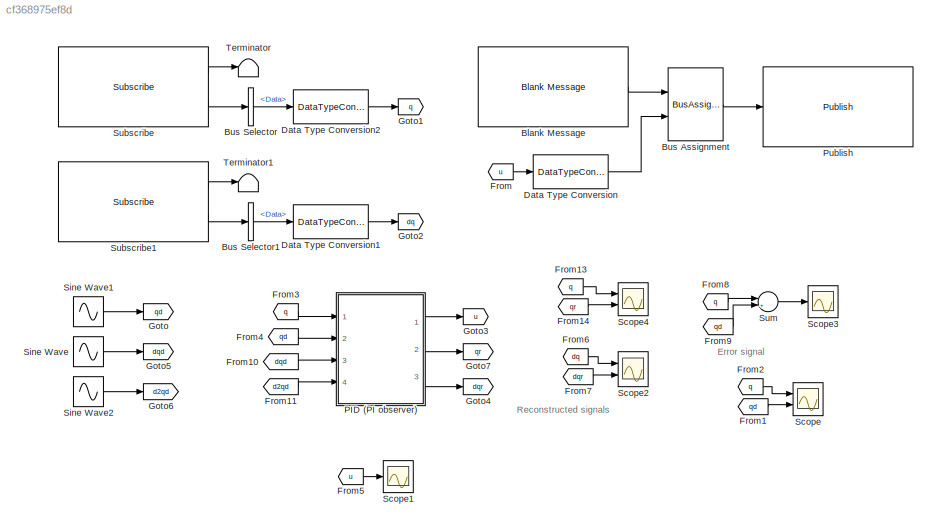
MODEL slx_cf368975ef8d
KIND model
CONFIG AbsTol = auto
CONFIG EnableMultiTasking = off
CONFIG FixedStep = 1e-3
CONFIG MaxStep = auto
CONFIG MinStep = auto
CONFIG RelTol = 1e-3
CONFIG SampleTimeConstraint = Unconstrained
CONFIG SolverName = ode4
CONFIG StartTime = 0.0
CONFIG StopTime = 10
BLOCK [Reference] Blank Message  REF=robotlib/Blank Message
  Ports = [0, 1]
  SourceBlock = robotlib/Blank Message
  SourceProductBaseCode = RR
  SourceType = ROS Blank Message
BLOCK [BusAssignment] Bus Assignment
  AssignedSignals = Data
  Ports = [2, 1]
BLOCK [BusSelector] Bus Selector
  OutputSignals = Data
  Ports = [1, 1]
BLOCK [BusSelector] Bus Selector1
  OutputSignals = Data
  Ports = [1, 1]
BLOCK [DataTypeConversion] Data Type Conversion
  RndMeth = Floor
  SaturateOnIntegerOverflow = off
BLOCK [DataTypeConversion] Data Type Conversion1
  RndMeth = Floor
  SaturateOnIntegerOverflow = off
BLOCK [DataTypeConversion] Data Type Conversion2
  RndMeth = Floor
  SaturateOnIntegerOverflow = off
BLOCK [From] From
  GotoTag = u
BLOCK [From] From1
  GotoTag = qd
BLOCK [From] From10
  GotoTag = dqd
BLOCK [From] From11
  GotoTag = d2qd
BLOCK [From] From13
  GotoTag = q
BLOCK [From] From14
  GotoTag = qr
BLOCK [From] From2
  GotoTag = q
BLOCK [From] From3
  GotoTag = q
BLOCK [From] From4
  GotoTag = qd
BLOCK [From] From5
  GotoTag = u
BLOCK [From] From6
  GotoTag = dq
BLOCK [From] From7
  GotoTag = dqr
BLOCK [From] From8
  GotoTag = q
BLOCK [From] From9
  GotoTag = qd
BLOCK [Goto] Goto
  GotoTag = qd
BLOCK [Goto] Goto1
  GotoTag = q
BLOCK [Goto] Goto2
  GotoTag = dq
BLOCK [Goto] Goto3
  GotoTag = u
BLOCK [Goto] Goto4
  GotoTag = dqr
BLOCK [Goto] Goto5
  GotoTag = dqd
BLOCK [Goto] Goto6
  GotoTag = d2qd
BLOCK [Goto] Goto7
  GotoTag = qr
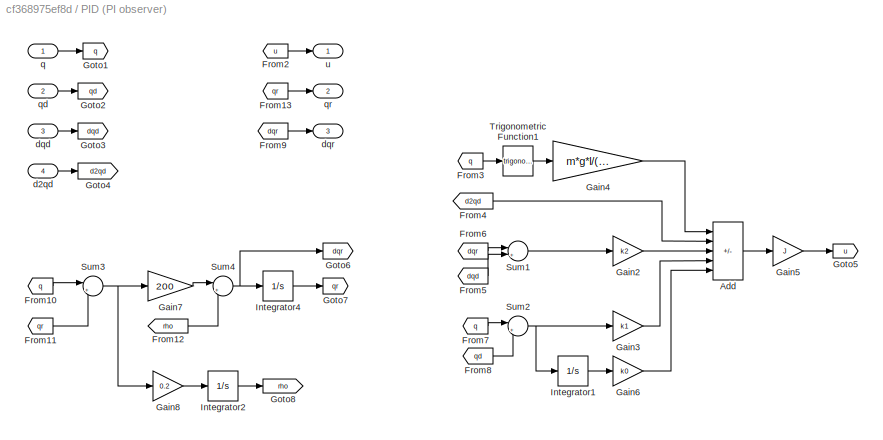
BLOCK [SubSystem] PID (PI observer)
  Ports = [4, 3]
  RequestExecContextInheritance = off
BLOCK [Sum] PID (PI observer)/Add
  IconShape = rectangular
  Inputs = -+---
  Ports = [5, 1]
BLOCK [From] PID (PI observer)/From10
  GotoTag = q
BLOCK [From] PID (PI observer)/From11
  GotoTag = qr
BLOCK [From] PID (PI observer)/From12
  GotoTag = rho
BLOCK [From] PID (PI observer)/From13
  GotoTag = qr
BLOCK [From] PID (PI observer)/From2
  GotoTag = u
BLOCK [From] PID (PI observer)/From3
  GotoTag = q
BLOCK [From] PID (PI observer)/From4
  GotoTag = d2qd
BLOCK [From] PID (PI observer)/From5
  GotoTag = dqd
BLOCK [From] PID (PI observer)/From6
  GotoTag = dqr
BLOCK [From] PID (PI observer)/From7
  GotoTag = q
BLOCK [From] PID (PI observer)/From8
  GotoTag = qd
BLOCK [From] PID (PI observer)/From9
  GotoTag = dqr
BLOCK [Gain] PID (PI observer)/Gain2
  Gain = k2
BLOCK [Gain] PID (PI observer)/Gain3
  Gain = k1
BLOCK [Gain] PID (PI observer)/Gain4
  Gain = m*g*l/(2*J)
BLOCK [Gain] PID (PI observer)/Gain5
  Gain = J
BLOCK [Gain] PID (PI observer)/Gain6
  Gain = k0
BLOCK [Gain] PID (PI observer)/Gain7
  Gain = 200
BLOCK [Gain] PID (PI observer)/Gain8
  Gain = 0.2
BLOCK [Goto] PID (PI observer)/Goto1
  GotoTag = q
BLOCK [Goto] PID (PI observer)/Goto2
  GotoTag = qd
BLOCK [Goto] PID (PI observer)/Goto3
  GotoTag = dqd
BLOCK [Goto] PID (PI observer)/Goto4
  GotoTag = d2qd
BLOCK [Goto] PID (PI observer)/Goto5
  GotoTag = u
BLOCK [Goto] PID (PI observer)/Goto6
  GotoTag = dqr
BLOCK [Goto] PID (PI observer)/Goto7
  GotoTag = qr
BLOCK [Goto] PID (PI observer)/Goto8
  GotoTag = rho
BLOCK [Integrator] PID (PI observer)/Integrator1
  Ports = [1, 1]
BLOCK [Integrator] PID (PI observer)/Integrator2
  Ports = [1, 1]
BLOCK [Integrator] PID (PI observer)/Integrator4
  Ports = [1, 1]
BLOCK [Sum] PID (PI observer)/Sum1
  Inputs = |+-
  Ports = [2, 1]
BLOCK [Sum] PID (PI observer)/Sum2
  Inputs = |+-
  Ports = [2, 1]
BLOCK [Sum] PID (PI observer)/Sum3
  Inputs = |+-
  Ports = [2, 1]
BLOCK [Sum] PID (PI observer)/Sum4
  Inputs = |++
  Ports = [2, 1]
BLOCK [Trigonometry] PID (PI observer)/Trigonometric Function1
  Ports = [1, 1]
BLOCK [Inport] PID (PI observer)/d2qd
  Port = 4
BLOCK [Inport] PID (PI observer)/dqd
  Port = 3
BLOCK [Outport] PID (PI observer)/dqr
  Port = 3
BLOCK [Inport] PID (PI observer)/q
BLOCK [Inport] PID (PI observer)/qd
  Port = 2
BLOCK [Outport] PID (PI observer)/qr
  Port = 2
BLOCK [Outport] PID (PI observer)/u
BLOCK [Reference] Publish  REF=robotlib/Publish
  Ports = [1]
  SourceBlock = robotlib/Publish
  SourceProductBaseCode = RR
  SourceType = ROS Publish
BLOCK [Scope] Scope
  Floating = off
  NumInputPorts = 2
  Ports = [2]
  ScopeSpecificationString = Simulink.scopes.TimeScopeBlockCfg('CurrentConfiguration', extmgr.ConfigurationSet(extmgr.Configuration('Core','General UI',true),extmgr.Configuration('Core','Source UI',true),extmgr.Configuration('Sources','WiredSimulink',true,'DataLoggingVariableName','ScopeData1'),extmgr.Configuration('Visuals','Time Domain',true,'SerializedDisplays',{struct('MinYLimReal','-1.88369','MaxYLimReal','1.95318','YLab...<+1464ch>
BLOCK [Scope] Scope1
  Floating = off
  NumInputPorts = 1
  Ports = [1]
  ScopeSpecificationString = Simulink.scopes.TimeScopeBlockCfg('CurrentConfiguration', extmgr.ConfigurationSet(extmgr.Configuration('Core','General UI',true),extmgr.Configuration('Core','Source UI',true),extmgr.Configuration('Sources','WiredSimulink',true,'DataLoggingVariableName','ScopeData2'),extmgr.Configuration('Visuals','Time Domain',true,'SerializedDisplays',{struct('MinYLimReal','-26.95054','MaxYLimReal','68.10732','YL...<+1431ch>
BLOCK [Scope] Scope2
  Floating = off
  NumInputPorts = 2
  Ports = [2]
  ScopeSpecificationString = Simulink.scopes.TimeScopeBlockCfg('CurrentConfiguration', extmgr.ConfigurationSet(extmgr.Configuration('Core','General UI',true),extmgr.Configuration('Core','Source UI',true),extmgr.Configuration('Sources','WiredSimulink',true,'DataLoggingVariableName','ScopeData3'),extmgr.Configuration('Visuals','Time Domain',true,'SerializedDisplays',{struct('MinYLimReal','-9.7239','MaxYLimReal','63.40269','YLab...<+1476ch>
BLOCK [Scope] Scope3
  Floating = off
  NumInputPorts = 1
  Ports = [1]
  ScopeSpecificationString = Simulink.scopes.TimeScopeBlockCfg('CurrentConfiguration', extmgr.ConfigurationSet(extmgr.Configuration('Core','General UI',true),extmgr.Configuration('Core','Source UI',true),extmgr.Configuration('Sources','WiredSimulink',true),extmgr.Configuration('Visuals','Time Domain',true,'SerializedDisplays',{struct('MinYLimReal','-0.05328','MaxYLimReal','0.05406','YLabelReal','','MinYLimMag','0.00000','MaxY...<+1370ch>
BLOCK [Scope] Scope4
  Floating = off
  NumInputPorts = 2
  Ports = [2]
  ScopeSpecificationString = Simulink.scopes.TimeScopeBlockCfg('CurrentConfiguration', extmgr.ConfigurationSet(extmgr.Configuration('Core','General UI',true),extmgr.Configuration('Core','Source UI',true),extmgr.Configuration('Sources','WiredSimulink',true,'DataLoggingVariableName','ScopeData1'),extmgr.Configuration('Visuals','Time Domain',true,'SerializedDisplays',{struct('MinYLimReal','-1.76124','MaxYLimReal','1.85687','YLab...<+1475ch>
BLOCK [Sin] Sine Wave
  Amplitude = 1.5
  Phase = pi/2
  Ports = [0, 1]
  SampleTime = 0
BLOCK [Sin] Sine Wave1
  Amplitude = 1.5
  Ports = [0, 1]
  SampleTime = 0
BLOCK [Sin] Sine Wave2
  Amplitude = 1.5
  Phase = -pi
  Ports = [0, 1]
  SampleTime = 0
BLOCK [Reference] Subscribe  REF=robotlib/Subscribe
  Ports = [0, 2]
  SourceBlock = robotlib/Subscribe
  SourceProductBaseCode = RR
  SourceType = ROS Subscribe
BLOCK [Reference] Subscribe1  REF=robotlib/Subscribe
  Ports = [0, 2]
  SourceBlock = robotlib/Subscribe
  SourceProductBaseCode = RR
  SourceType = ROS Subscribe
BLOCK [Sum] Sum
  Inputs = |+-
  Ports = [2, 1]
BLOCK [Terminator] Terminator
BLOCK [Terminator] Terminator1
ANNOTATION (root): Error signal
ANNOTATION (root): Reconstructed signals
LINE Blank Message:1 -> Bus Assignment:1
LINE Bus Assignment:1 -> Publish:1
LINE Bus Selector1:1 -> Data Type Conversion1:1
LINE Bus Selector:1 -> Data Type Conversion2:1
LINE Data Type Conversion1:1 -> Goto2:1
LINE Data Type Conversion2:1 -> Goto1:1
LINE Data Type Conversion:1 -> Bus Assignment:2
LINE From10:1 -> PID (PI observer):3
LINE From11:1 -> PID (PI observer):4
LINE From13:1 -> Scope4:1
LINE From14:1 -> Scope4:2
LINE From1:1 -> Scope:2
LINE From2:1 -> Scope:1
LINE From3:1 -> PID (PI observer):1
LINE From4:1 -> PID (PI observer):2
LINE From5:1 -> Scope1:1
LINE From6:1 -> Scope2:1
LINE From7:1 -> Scope2:2
LINE From8:1 -> Sum:1
LINE From9:1 -> Sum:2
LINE From:1 -> Data Type Conversion:1
LINE PID (PI observer)/Add:1 -> PID (PI observer)/Gain5:1
LINE PID (PI observer)/From10:1 -> PID (PI observer)/Sum3:1
LINE PID (PI observer)/From11:1 -> PID (PI observer)/Sum3:2
LINE PID (PI observer)/From12:1 -> PID (PI observer)/Sum4:2
LINE PID (PI observer)/From13:1 -> PID (PI observer)/qr:1
LINE PID (PI observer)/From2:1 -> PID (PI observer)/u:1
LINE PID (PI observer)/From3:1 -> PID (PI observer)/Trigonometric Function1:1
LINE PID (PI observer)/From4:1 -> PID (PI observer)/Add:2
LINE PID (PI observer)/From5:1 -> PID (PI observer)/Sum1:2
LINE PID (PI observer)/From6:1 -> PID (PI observer)/Sum1:1
LINE PID (PI observer)/From7:1 -> PID (PI observer)/Sum2:1
LINE PID (PI observer)/From8:1 -> PID (PI observer)/Sum2:2
LINE PID (PI observer)/From9:1 -> PID (PI observer)/dqr:1
LINE PID (PI observer)/Gain2:1 -> PID (PI observer)/Add:3
LINE PID (PI observer)/Gain3:1 -> PID (PI observer)/Add:4
LINE PID (PI observer)/Gain4:1 -> PID (PI observer)/Add:1
LINE PID (PI observer)/Gain5:1 -> PID (PI observer)/Goto5:1
LINE PID (PI observer)/Gain6:1 -> PID (PI observer)/Add:5
LINE PID (PI observer)/Gain7:1 -> PID (PI observer)/Sum4:1
LINE PID (PI observer)/Gain8:1 -> PID (PI observer)/Integrator2:1
LINE PID (PI observer)/Integrator1:1 -> PID (PI observer)/Gain6:1
LINE PID (PI observer)/Integrator2:1 -> PID (PI observer)/Goto8:1
LINE PID (PI observer)/Integrator4:1 -> PID (PI observer)/Goto7:1
LINE PID (PI observer)/Sum1:1 -> PID (PI observer)/Gain2:1
NET PID (PI observer)/Sum2:1 -> PID (PI observer)/Gain3:1, PID (PI observer)/Integrator1:1
NET PID (PI observer)/Sum3:1 -> PID (PI observer)/Gain7:1, PID (PI observer)/Gain8:1
NET PID (PI observer)/Sum4:1 -> PID (PI observer)/Goto6:1, PID (PI observer)/Integrator4:1
LINE PID (PI observer)/Trigonometric Function1:1 -> PID (PI observer)/Gain4:1
LINE PID (PI observer)/d2qd:1 -> PID (PI observer)/Goto4:1
LINE PID (PI observer)/dqd:1 -> PID (PI observer)/Goto3:1
LINE PID (PI observer)/q:1 -> PID (PI observer)/Goto1:1
LINE PID (PI observer)/qd:1 -> PID (PI observer)/Goto2:1
LINE PID (PI observer):1 -> Goto3:1
LINE PID (PI observer):2 -> Goto7:1
LINE PID (PI observer):3 -> Goto4:1
LINE Sine Wave1:1 -> Goto:1
LINE Sine Wave2:1 -> Goto6:1
LINE Sine Wave:1 -> Goto5:1
LINE Subscribe1:1 -> Terminator1:1
LINE Subscribe1:2 -> Bus Selector1:1
LINE Subscribe:1 -> Terminator:1
LINE Subscribe:2 -> Bus Selector:1
LINE Sum:1 -> Scope3:1
note: NET lines group one-source signal fan-out (src -> all destinations, sorted); 1:1 wires keep LINE
